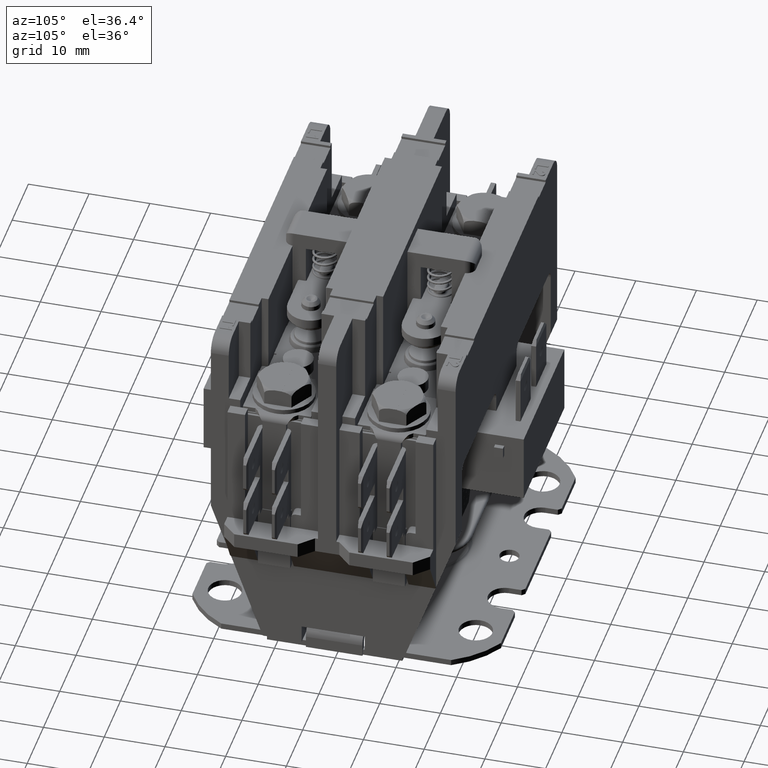
[diagram: clean part render]
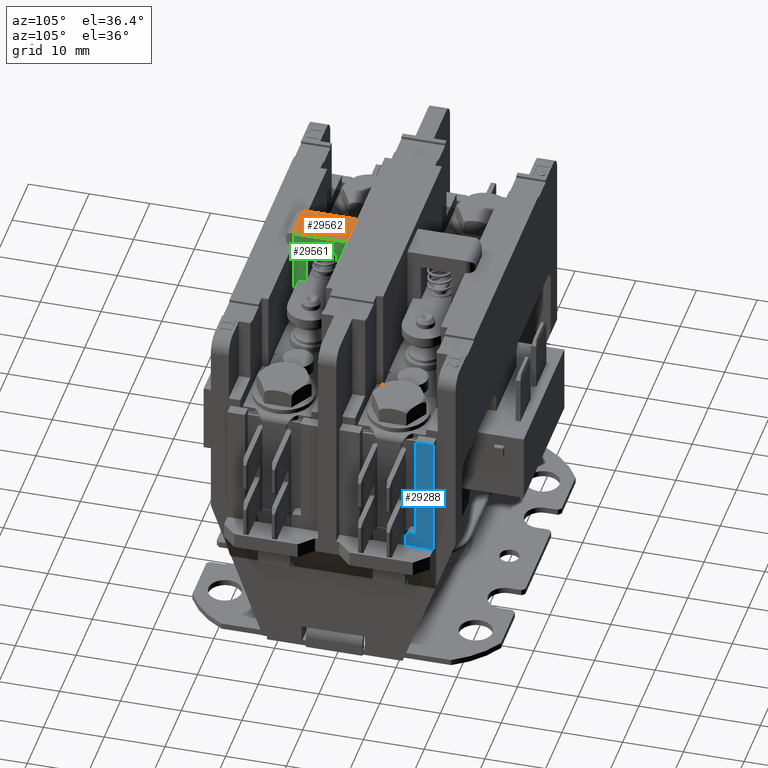
[diagram: same view with three faces highlighted in distinct colors, each labeled with its STEP entity id]
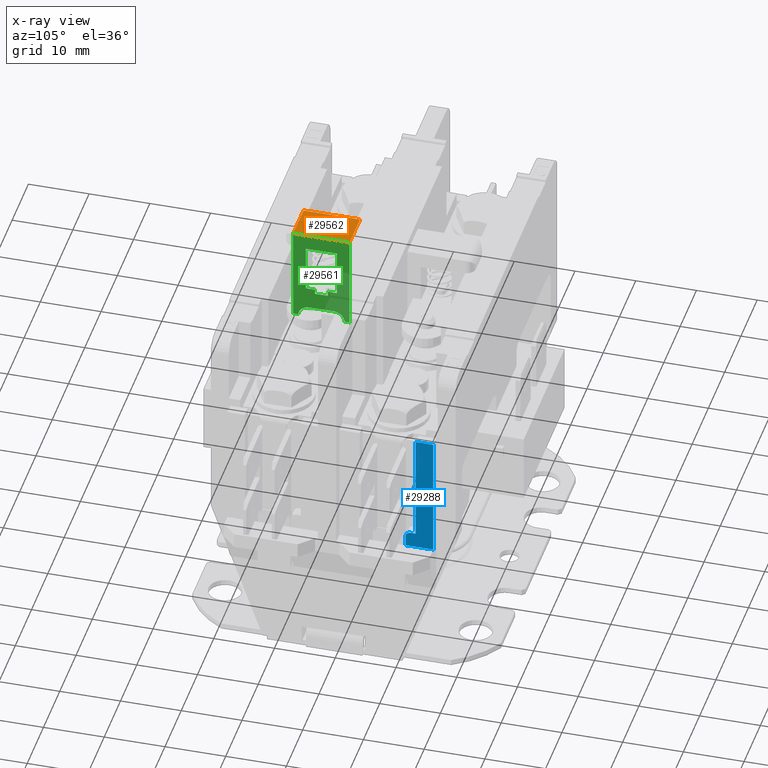
[diagram: x-ray of the same camera — body ghosted, the three highlighted faces saturated]
A machine part, auxiliary view with three faces highlighted in distinct colors.
The next image is the same camera in x-ray (body ghosted, the three faces saturated) — at least one of them is partly hidden behind the body in this view.
Their STEP definitions:

[orange] entity #29562 — the highlighted planar face has unit normal (-0, -0, 1).
#336=LINE($,#40902,#3166);
#2457=LINE($,#51791,#5287);
#2466=LINE($,#51810,#5296);
#2467=LINE($,#51811,#5297);
#3166=VECTOR($,#32904,0.64);
#5287=VECTOR($,#38673,0.93);
#5296=VECTOR($,#38684,0.93);
#5297=VECTOR($,#38685,0.64);
#6858=PLANE($,#31898);
#8550=FACE_OUTER_BOUND($,#10306,.T.);
#10306=EDGE_LOOP($,(#24515,#24516,#24517,#24518));
#11763=VERTEX_POINT($,#40514);
#11932=VERTEX_POINT($,#40894);
#11934=VERTEX_POINT($,#40900);
#13945=VERTEX_POINT($,#51809);
#14595=EDGE_CURVE($,#11934,#11932,#336,.T.);
#17614=EDGE_CURVE($,#11932,#11763,#2457,.T.);
#17623=EDGE_CURVE($,#13945,#11934,#2466,.T.);
#17624=EDGE_CURVE($,#11763,#13945,#2467,.T.);
#24515=ORIENTED_EDGE($,*,*,#14595,.F.);
#24516=ORIENTED_EDGE($,*,*,#17623,.F.);
#24517=ORIENTED_EDGE($,*,*,#17624,.F.);
#24518=ORIENTED_EDGE($,*,*,#17614,.F.);
#29562=ADVANCED_FACE($,(#8550),#6858,.T.);
#31898=AXIS2_PLACEMENT_3D($,#51808,#38682,#38683);
#32904=DIRECTION($,(1.,3.21440861353889E-016,1.25760350846182E-031));
#38673=DIRECTION($,(6.12323399573677E-017,-1.,-1.1612765277336E-033));
#38682=DIRECTION('center_axis',(-1.25760350846182E-031,-1.2865956002851E-047,
1.));
#38683=DIRECTION('ref_axis',(6.12323399573677E-017,-1.,0.));
#38684=DIRECTION($,(-1.96625391740923E-016,1.,1.1612765277336E-033));
#38685=DIRECTION($,(-1.,-6.12323399573677E-017,-1.25760350846182E-031));
#40514=CARTESIAN_POINT('',(0.32,-1.41,6.));
#40894=CARTESIAN_POINT('',(0.32,-0.48,6.));
#40900=CARTESIAN_POINT('',(-0.32,-0.48,6.));
#40902=CARTESIAN_POINT($,(-0.16,-0.48,6.));
#51791=CARTESIAN_POINT($,(0.32,-0.33,6.));
#51808=CARTESIAN_POINT('Origin',(2.58940685627288E-016,-0.945,6.));
#51809=CARTESIAN_POINT('',(-0.32,-1.41,6.));
#51810=CARTESIAN_POINT($,(-0.32,-1.56,6.));
#51811=CARTESIAN_POINT($,(0.16,-1.41,6.));

[blue] entity #29288 — the highlighted planar face has unit normal (-1, 0, 0).
#1771=LINE($,#47905,#4601);
#1941=LINE($,#48260,#4771);
#2009=LINE($,#48403,#4839);
#2048=LINE($,#48473,#4878);
#2062=LINE($,#48501,#4892);
#2069=LINE($,#48518,#4899);
#4601=VECTOR($,#36977,2.07);
#4771=VECTOR($,#37279,0.180000000000001);
#4839=VECTOR($,#37413,0.290000000000003);
#4878=VECTOR($,#37486,0.455);
#4892=VECTOR($,#37514,0.0849999999999937);
#4899=VECTOR($,#37537,1.81);
#6671=PLANE($,#31523);
#8278=FACE_OUTER_BOUND($,#10002,.T.);
#10002=EDGE_LOOP($,(#23183,#23184,#23185,#23186,#23187,#23188,#23189));
#11388=CIRCLE($,#31457,0.08);
#13452=VERTEX_POINT($,#47902);
#13453=VERTEX_POINT($,#47904);
#13569=VERTEX_POINT($,#48250);
#13570=VERTEX_POINT($,#48251);
#13572=VERTEX_POINT($,#48258);
#13613=VERTEX_POINT($,#48400);
#13635=VERTEX_POINT($,#48500);
#16756=EDGE_CURVE($,#13453,#13452,#1771,.T.);
#16935=EDGE_CURVE($,#13569,#13570,#11388,.T.);
#16940=EDGE_CURVE($,#13569,#13572,#1941,.T.);
#17015=EDGE_CURVE($,#13452,#13613,#2009,.T.);
#17054=EDGE_CURVE($,#13572,#13453,#2048,.T.);
#17068=EDGE_CURVE($,#13635,#13570,#2062,.T.);
#17075=EDGE_CURVE($,#13635,#13613,#2069,.T.);
#23183=ORIENTED_EDGE($,*,*,#16935,.F.);
#23184=ORIENTED_EDGE($,*,*,#16940,.T.);
#23185=ORIENTED_EDGE($,*,*,#17054,.T.);
#23186=ORIENTED_EDGE($,*,*,#16756,.T.);
#23187=ORIENTED_EDGE($,*,*,#17015,.T.);
#23188=ORIENTED_EDGE($,*,*,#17075,.F.);
#23189=ORIENTED_EDGE($,*,*,#17068,.T.);
#29288=ADVANCED_FACE($,(#8278),#6671,.F.);
#31457=AXIS2_PLACEMENT_3D($,#48252,#37271,#37272);
#31523=AXIS2_PLACEMENT_3D($,#48517,#37535,#37536);
#36977=DIRECTION($,(4.49810398576173E-016,5.60933711948117E-062,1.));
#37271=DIRECTION('center_axis',(-1.,2.38117538793599E-016,4.49810398576173E-016));
#37272=DIRECTION('ref_axis',(3.18063983081435E-016,-0.707106781186548,0.707106781186548));
#37279=DIRECTION($,(-4.49810398576173E-016,-5.60933711948117E-062,-1.));
#37413=DIRECTION($,(-2.38117538793599E-016,-1.,-7.7861673409301E-032));
#37486=DIRECTION($,(2.38117538793599E-016,1.,1.89144828238182E-029));
#37514=DIRECTION($,(-2.38117538793599E-016,-1.,1.21996628581801E-030));
#37535=DIRECTION('center_axis',(-1.,2.38117538793599E-016,4.49810398576173E-016));
#37536=DIRECTION('ref_axis',(4.44089209850063E-016,0.,1.));
#37537=DIRECTION($,(4.49810398576173E-016,5.60933711948117E-062,1.));
#47902=CARTESIAN_POINT('',(3.3,1.695,4.54));
#47904=CARTESIAN_POINT('',(3.3,1.695,2.47));
#47905=CARTESIAN_POINT($,(3.3,1.695,2.345));
#48250=CARTESIAN_POINT('',(3.3,1.24,2.65));
#48251=CARTESIAN_POINT('',(3.3,1.32,2.73));
#48252=CARTESIAN_POINT('Origin',(3.3,1.32,2.65));
#48258=CARTESIAN_POINT('',(3.3,1.24,2.47));
#48260=CARTESIAN_POINT($,(3.3,1.24,2.6));
#48400=CARTESIAN_POINT('',(3.3,1.405,4.54));
#48403=CARTESIAN_POINT($,(3.3,0.53625,4.54));
#48473=CARTESIAN_POINT($,(3.3,0.15,2.47));
#48500=CARTESIAN_POINT('',(3.3,1.40499999999999,2.73));
#48501=CARTESIAN_POINT($,(3.3,0.5475,2.73));
#48517=CARTESIAN_POINT('Origin',(3.3,0.15,2.47));
#48518=CARTESIAN_POINT($,(3.3,1.405,4.32));

[green] entity #29561 — the highlighted planar face has unit normal (1, 0, 0).
#162=LINE($,#40515,#2992);
#222=LINE($,#40644,#3052);
#224=LINE($,#40651,#3054);
#334=LINE($,#40896,#3164);
#1009=LINE($,#43380,#3839);
#2457=LINE($,#51791,#5287);
#2458=LINE($,#51794,#5288);
#2459=LINE($,#51796,#5289);
#2460=LINE($,#51798,#5290);
#2461=LINE($,#51800,#5291);
#2462=LINE($,#51802,#5292);
#2463=LINE($,#51804,#5293);
#2464=LINE($,#51806,#5294);
#2465=LINE($,#51807,#5295);
#2992=VECTOR($,#32646,1.58);
#3052=VECTOR($,#32726,0.0852779924438867);
#3054=VECTOR($,#32732,0.0852779924438853);
#3164=VECTOR($,#32898,1.58);
#3839=VECTOR($,#34841,0.4);
#5287=VECTOR($,#38673,0.93);
#5288=VECTOR($,#38674,0.15);
#5289=VECTOR($,#38675,0.0800000000000001);
#5290=VECTOR($,#38676,0.21);
#5291=VECTOR($,#38677,0.0800000000000001);
#5292=VECTOR($,#38678,0.15);
#5293=VECTOR($,#38679,0.78);
#5294=VECTOR($,#38680,0.51);
#5295=VECTOR($,#38681,0.78);
#6857=PLANE($,#31896);
#7352=FACE_BOUND($,#10305,.T.);
#8549=FACE_OUTER_BOUND($,#10304,.T.);
#10304=EDGE_LOOP($,(#24499,#24500,#24501,#24502,#24503,#24504,#24505,#24506));
#10305=EDGE_LOOP($,(#24507,#24508,#24509,#24510,#24511,#24512,#24513,#24514));
#11205=CIRCLE($,#30708,0.18);
#11510=CIRCLE($,#31897,0.18);
#11762=VERTEX_POINT($,#40512);
#11763=VERTEX_POINT($,#40514);
#11821=VERTEX_POINT($,#40641);
#11822=VERTEX_POINT($,#40643);
#11825=VERTEX_POINT($,#40649);
#11932=VERTEX_POINT($,#40894);
#12822=VERTEX_POINT($,#43377);
#12823=VERTEX_POINT($,#43379);
#13937=VERTEX_POINT($,#51792);
#13938=VERTEX_POINT($,#51793);
#13939=VERTEX_POINT($,#51795);
#13940=VERTEX_POINT($,#51797);
#13941=VERTEX_POINT($,#51799);
#13942=VERTEX_POINT($,#51801);
#13943=VERTEX_POINT($,#51803);
#13944=VERTEX_POINT($,#51805);
#14402=EDGE_CURVE($,#11762,#11763,#162,.T.);
#14466=EDGE_CURVE($,#11822,#11821,#222,.T.);
#14470=EDGE_CURVE($,#11762,#11825,#224,.T.);
#14592=EDGE_CURVE($,#11932,#11821,#334,.T.);
#15731=EDGE_CURVE($,#12823,#12822,#1009,.T.);
#15733=EDGE_CURVE($,#11822,#12822,#11205,.T.);
#17613=EDGE_CURVE($,#12823,#11825,#11510,.T.);
#17614=EDGE_CURVE($,#11932,#11763,#2457,.T.);
#17615=EDGE_CURVE($,#13937,#13938,#2458,.T.);
#17616=EDGE_CURVE($,#13938,#13939,#2459,.T.);
#17617=EDGE_CURVE($,#13939,#13940,#2460,.T.);
#17618=EDGE_CURVE($,#13940,#13941,#2461,.T.);
#17619=EDGE_CURVE($,#13941,#13942,#2462,.T.);
#17620=EDGE_CURVE($,#13942,#13943,#2463,.T.);
#17621=EDGE_CURVE($,#13943,#13944,#2464,.T.);
#17622=EDGE_CURVE($,#13944,#13937,#2465,.T.);
#24499=ORIENTED_EDGE($,*,*,#14470,.T.);
#24500=ORIENTED_EDGE($,*,*,#17613,.F.);
#24501=ORIENTED_EDGE($,*,*,#15731,.T.);
#24502=ORIENTED_EDGE($,*,*,#15733,.F.);
#24503=ORIENTED_EDGE($,*,*,#14466,.T.);
#24504=ORIENTED_EDGE($,*,*,#14592,.F.);
#24505=ORIENTED_EDGE($,*,*,#17614,.T.);
#24506=ORIENTED_EDGE($,*,*,#14402,.F.);
#24507=ORIENTED_EDGE($,*,*,#17615,.T.);
#24508=ORIENTED_EDGE($,*,*,#17616,.T.);
#24509=ORIENTED_EDGE($,*,*,#17617,.T.);
#24510=ORIENTED_EDGE($,*,*,#17618,.T.);
#24511=ORIENTED_EDGE($,*,*,#17619,.T.);
#24512=ORIENTED_EDGE($,*,*,#17620,.T.);
#24513=ORIENTED_EDGE($,*,*,#17621,.T.);
#24514=ORIENTED_EDGE($,*,*,#17622,.T.);
#29561=ADVANCED_FACE($,(#8549,#7352),#6857,.T.);
#30708=AXIS2_PLACEMENT_3D($,#43383,#34846,#34847);
#31896=AXIS2_PLACEMENT_3D($,#51789,#38669,#38670);
#31897=AXIS2_PLACEMENT_3D($,#51790,#38671,#38672);
#32646=DIRECTION($,(-2.29584502165847E-049,-1.40579962855621E-065,1.));
#32726=DIRECTION($,(-6.12323399573677E-017,1.,2.75429432419752E-032));
#32732=DIRECTION($,(-6.12323399573677E-017,1.,2.75429432419752E-032));
#32898=DIRECTION($,(2.29584502165847E-049,1.40579962855621E-065,-1.));
#34841=DIRECTION($,(-6.12323399573677E-017,1.,5.00492757571421E-115));
#34846=DIRECTION('center_axis',(1.,6.12323399573677E-017,2.29584502165847E-049));
#34847=DIRECTION('ref_axis',(-4.32978028117747E-017,0.707106781186547,0.707106781186547));
#38669=DIRECTION('center_axis',(1.,6.12323399573677E-017,2.29584502165847E-049));
#38670=DIRECTION('ref_axis',(0.,0.,1.));
#38671=DIRECTION('center_axis',(1.,6.12323399573677E-017,2.29584502165847E-049));
#38672=DIRECTION('ref_axis',(4.32978028117747E-017,-0.707106781186548,0.707106781186548));
#38673=DIRECTION($,(6.12323399573677E-017,-1.,-1.1612765277336E-033));
#38674=DIRECTION($,(6.12323399573677E-017,-1.,-5.00492757571421E-115));
#38675=DIRECTION($,(2.29584502165847E-049,1.40579962855621E-065,-1.));
#38676=DIRECTION($,(6.12323399573677E-017,-1.,-5.00492757571421E-115));
#38677=DIRECTION($,(-2.29584502165847E-049,-1.40579962855621E-065,1.));
#38678=DIRECTION($,(6.12323399573677E-017,-1.,-5.00492757571421E-115));
#38679=DIRECTION($,(-2.29584502165847E-049,-1.40579962855621E-065,1.));
#38680=DIRECTION($,(-6.12323399573677E-017,1.,-4.35381578284375E-016));
#38681=DIRECTION($,(2.29584502165847E-049,1.40579962855621E-065,-1.));
#40512=CARTESIAN_POINT('',(0.32,-1.41,4.42));
#40514=CARTESIAN_POINT('',(0.32,-1.41,6.));
#40515=CARTESIAN_POINT($,(0.32,-1.41,3.84));
#40641=CARTESIAN_POINT('',(0.32,-0.48,4.42));
#40643=CARTESIAN_POINT('',(0.32,-0.565277992443887,4.42));
#40644=CARTESIAN_POINT($,(0.32,0.779999999999999,4.42));
#40649=CARTESIAN_POINT('',(0.32,-1.32472200755611,4.42));
#40651=CARTESIAN_POINT($,(0.32,0.779999999999999,4.42));
#40894=CARTESIAN_POINT('',(0.32,-0.48,6.));
#40896=CARTESIAN_POINT($,(0.32,-0.48,3.84));
#43377=CARTESIAN_POINT('',(0.32,-0.745000000000001,4.59));
#43379=CARTESIAN_POINT('',(0.32,-1.145,4.59));
#43380=CARTESIAN_POINT($,(0.32,0.4975,4.59));
#43383=CARTESIAN_POINT('Origin',(0.32,-0.745000000000001,4.41));
#51789=CARTESIAN_POINT('Origin',(0.32,1.56,3.84));
#51790=CARTESIAN_POINT('Origin',(0.32,-1.145,4.41));
#51791=CARTESIAN_POINT($,(0.32,-0.33,6.));
#51792=CARTESIAN_POINT('',(0.32,-0.690000000000001,4.96));
#51793=CARTESIAN_POINT('',(0.32,-0.840000000000001,4.96));
#51794=CARTESIAN_POINT($,(0.32,0.435,4.96));
#51795=CARTESIAN_POINT('',(0.32,-0.840000000000001,4.88));
#51796=CARTESIAN_POINT($,(0.32,-0.840000000000001,4.4));
#51797=CARTESIAN_POINT('',(0.32,-1.05,4.88));
#51798=CARTESIAN_POINT($,(0.32,0.36,4.88));
#51799=CARTESIAN_POINT('',(0.32,-1.05,4.96));
#51800=CARTESIAN_POINT($,(0.32,-1.05,4.36));
#51801=CARTESIAN_POINT('',(0.32,-1.2,4.96));
#51802=CARTESIAN_POINT($,(0.32,0.435,4.96));
#51803=CARTESIAN_POINT('',(0.32,-1.2,5.74));
#51804=CARTESIAN_POINT($,(0.32,-1.2,4.4));
#51805=CARTESIAN_POINT('',(0.32,-0.690000000000001,5.74));
#51806=CARTESIAN_POINT($,(0.32,0.18,5.74));
#51807=CARTESIAN_POINT($,(0.32,-0.690000000000001,4.79));